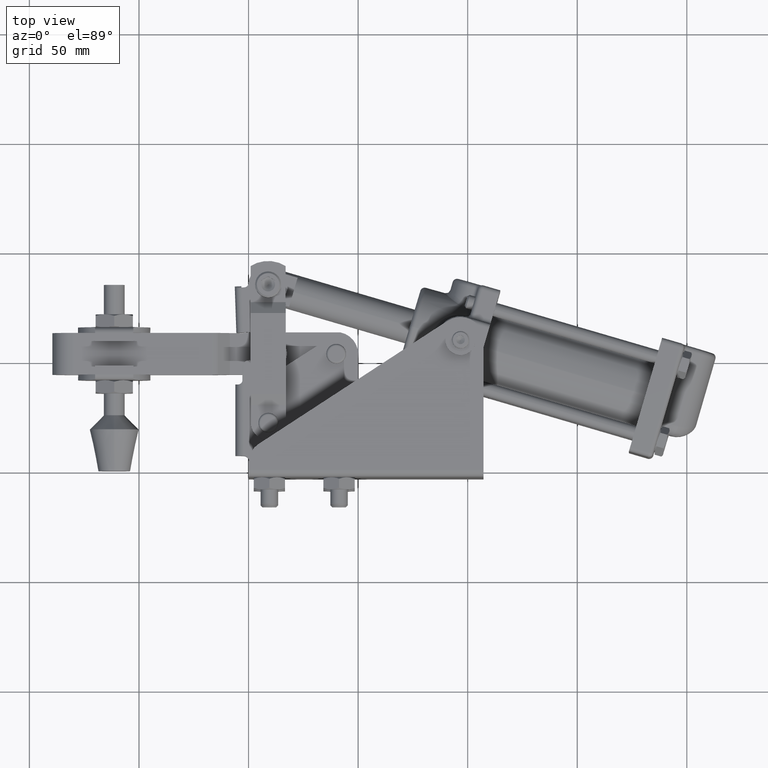
[diagram: clean part render]
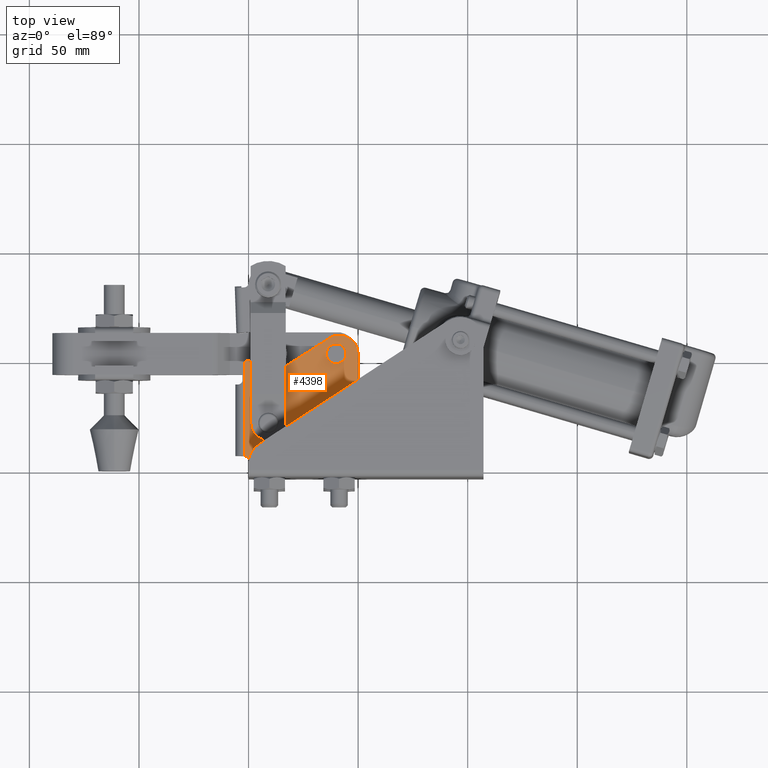
[diagram: same view with one face highlighted and labeled with its STEP entity id]
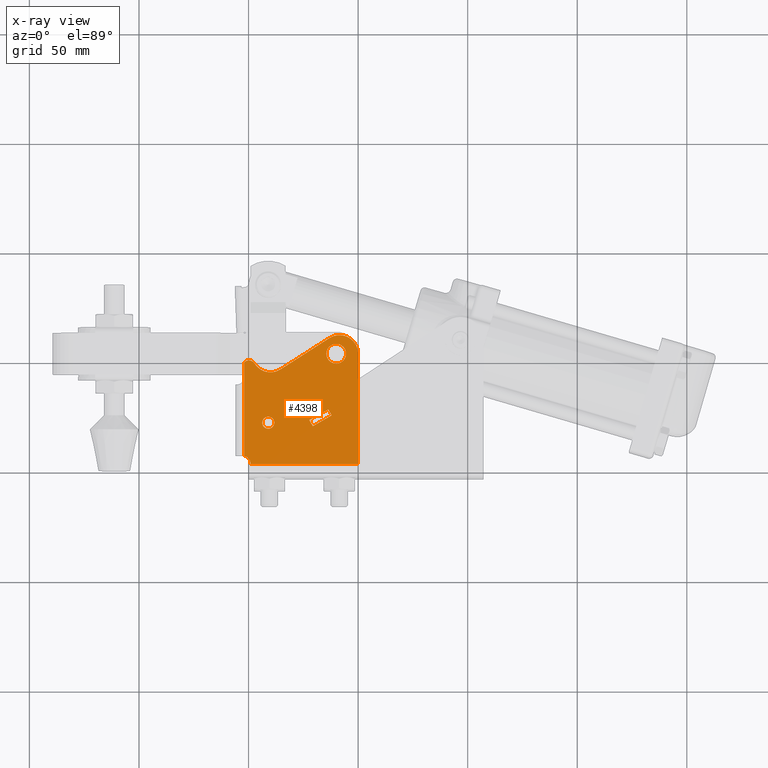
[diagram: x-ray of the same camera — body ghosted, the highlighted face saturated]
A machine part, top view. The second image highlights one B-rep face of the part: STEP entity #4398.
The next image is the same camera in x-ray: the body ghosted, the highlighted face saturated — about 0% of this face is hidden behind the body in this view.
In plain terms, the highlighted planar face has unit normal (0, 0, 1).
Its self-contained STEP definition (entity closure, byte-faithful):
#196 = DIRECTION ( 'NONE',  ( 0.0000000000000000000, 0.0000000000000000000, 1.000000000000000000 ) ) ;
#348 = DIRECTION ( 'NONE',  ( 0.8660254037844444800, 0.4999999999999899000, 0.0000000000000000000 ) ) ;
#630 = VERTEX_POINT ( 'NONE', #2278 ) ;
#990 = DIRECTION ( 'NONE',  ( 0.0000000000000000000, 0.0000000000000000000, 1.000000000000000000 ) ) ;
#991 = DIRECTION ( 'NONE',  ( 1.000000000000000000, 0.0000000000000000000, 0.0000000000000000000 ) ) ;
#1034 = VERTEX_POINT ( 'NONE', #18400 ) ;
#1097 = LINE ( 'NONE', #17187, #21736 ) ;
#1398 = DIRECTION ( 'NONE',  ( 1.000000000000000000, 0.0000000000000000000, 0.0000000000000000000 ) ) ;
#1402 = EDGE_CURVE ( 'NONE', #27455, #1034, #31742, .T. ) ;
#1664 = CARTESIAN_POINT ( 'NONE',  ( -49.19999999999917900, 3.500000000000003100, 7.000000000000000000 ) ) ;
#2278 = CARTESIAN_POINT ( 'NONE',  ( -7.466989818575354900, 49.77993113570642000, 7.000000000000000000 ) ) ;
#2461 = LINE ( 'NONE', #6563, #19884 ) ;
#2514 = DIRECTION ( 'NONE',  ( 0.0000000000000000000, 0.0000000000000000000, 1.000000000000000000 ) ) ;
#2976 = VECTOR ( 'NONE', #25207, 1000.000000000000000 ) ;
#3260 = VECTOR ( 'NONE', #348, 1000.000000000000100 ) ;
#4083 = ORIENTED_EDGE ( 'NONE', *, *, #33355, .F. ) ;
#4133 = ORIENTED_EDGE ( 'NONE', *, *, #29233, .T. ) ;
#4272 = AXIS2_PLACEMENT_3D ( 'NONE', #13667, #31745, #16267 ) ;
#4398 = ADVANCED_FACE ( 'NONE', ( #24924, #30152, #10337, #23332 ), #32613, .T. ) ;
#5260 = DIRECTION ( 'NONE',  ( -0.0000000000000000000, -0.0000000000000000000, -1.000000000000000000 ) ) ;
#5446 = ORIENTED_EDGE ( 'NONE', *, *, #32872, .T. ) ;
#5581 = AXIS2_PLACEMENT_3D ( 'NONE', #32693, #990, #11745 ) ;
#5881 = ORIENTED_EDGE ( 'NONE', *, *, #7941, .F. ) ;
#5978 = DIRECTION ( 'NONE',  ( 1.982541115402063700E-015, -1.000000000000000000, 0.0000000000000000000 ) ) ;
#6563 = CARTESIAN_POINT ( 'NONE',  ( -49.20000000000005300, 3.000000000000000000, 6.999999999999985800 ) ) ;
#6762 = AXIS2_PLACEMENT_3D ( 'NONE', #25527, #10020, #28121 ) ;
#6887 = VERTEX_POINT ( 'NONE', #18082 ) ;
#6886 = EDGE_CURVE ( 'NONE', #14216, #18568, #22460, .T. ) ;
#7521 = ORIENTED_EDGE ( 'NONE', *, *, #28423, .T. ) ;
#7609 = VECTOR ( 'NONE', #32881, 1000.000000000000000 ) ;
#7750 = VERTEX_POINT ( 'NONE', #16985 ) ;
#7941 = EDGE_CURVE ( 'NONE', #17130, #27455, #30816, .T. ) ;
#8057 = EDGE_CURVE ( 'NONE', #14333, #6887, #21081, .T. ) ;
#8668 = VECTOR ( 'NONE', #5978, 1000.000000000000000 ) ;
#8983 = CARTESIAN_POINT ( 'NONE',  ( -40.99998930350813700, 21.99999999999999300, 7.000000000000000000 ) ) ;
#9172 = EDGE_LOOP ( 'NONE', ( #12729, #31711 ) ) ;
#9182 = ORIENTED_EDGE ( 'NONE', *, *, #1402, .F. ) ;
#9446 = CARTESIAN_POINT ( 'NONE',  ( -22.29911704793288200, 23.21938834916051800, 7.000000000000000000 ) ) ;
#10020 = DIRECTION ( 'NONE',  ( 0.0000000000000000000, 0.0000000000000000000, 1.000000000000000000 ) ) ;
#10337 = FACE_OUTER_BOUND ( 'NONE', #19641, .T. ) ;
#10372 = CARTESIAN_POINT ( 'NONE',  ( -49.20000000000005300, 3.000000000000000000, 6.999999999999985800 ) ) ;
#10830 = ORIENTED_EDGE ( 'NONE', *, *, #12881, .T. ) ;
#10964 = CIRCLE ( 'NONE', #31064, 2.750000000000002700 ) ;
#11745 = DIRECTION ( 'NONE',  ( 1.000000000000000000, 0.0000000000000000000, -0.0000000000000000000 ) ) ;
#11907 = VECTOR ( 'NONE', #30353, 1000.000000000000200 ) ;
#12295 = CARTESIAN_POINT ( 'NONE',  ( -51.99999999999923300, 7.000000000000007100, 7.000000000000000000 ) ) ;
#12406 = VECTOR ( 'NONE', #18773, 1000.000000000000000 ) ;
#12473 = VERTEX_POINT ( 'NONE', #30297 ) ;
#12622 = DIRECTION ( 'NONE',  ( -0.0000000000000000000, -0.0000000000000000000, -1.000000000000000000 ) ) ;
#12729 = ORIENTED_EDGE ( 'NONE', *, *, #29469, .F. ) ;
#12881 = EDGE_CURVE ( 'NONE', #6887, #32467, #22935, .T. ) ;
#13300 = VERTEX_POINT ( 'NONE', #20416 ) ;
#13667 = CARTESIAN_POINT ( 'NONE',  ( -9.999989303508149500, 53.50000000000000000, 7.000000000000000000 ) ) ;
#13723 = ORIENTED_EDGE ( 'NONE', *, *, #26292, .T. ) ;
#13761 = CARTESIAN_POINT ( 'NONE',  ( -49.79727695269276900, 47.47999999999999700, 7.000000000000000000 ) ) ;
#13878 = ORIENTED_EDGE ( 'NONE', *, *, #8057, .T. ) ;
#14216 = VERTEX_POINT ( 'NONE', #22111 ) ;
#14333 = VERTEX_POINT ( 'NONE', #20546 ) ;
#14507 = DIRECTION ( 'NONE',  ( 1.000000000000000000, 0.0000000000000000000, 4.231032868236112000E-016 ) ) ;
#14581 = EDGE_CURVE ( 'NONE', #12473, #25230, #10964, .T. ) ;
#15401 = VERTEX_POINT ( 'NONE', #25633 ) ;
#15736 = CARTESIAN_POINT ( 'NONE',  ( -20.66021590455439100, 20.43762939681197100, 7.000000000000000000 ) ) ;
#16190 = ORIENTED_EDGE ( 'NONE', *, *, #27845, .T. ) ;
#16194 = CARTESIAN_POINT ( 'NONE',  ( -22.29911704793288200, 23.21938834916051800, 7.000000000000000000 ) ) ;
#16267 = DIRECTION ( 'NONE',  ( 1.000000000000000000, 0.0000000000000000000, 0.0000000000000000000 ) ) ;
#16504 = DIRECTION ( 'NONE',  ( 0.0000000000000000000, 0.0000000000000000000, 1.000000000000000000 ) ) ;
#16542 = ORIENTED_EDGE ( 'NONE', *, *, #6886, .T. ) ;
#16766 = LINE ( 'NONE', #12295, #2976 ) ;
#16908 = DIRECTION ( 'NONE',  ( 0.0000000000000000000, 0.0000000000000000000, 1.000000000000000000 ) ) ;
#16985 = CARTESIAN_POINT ( 'NONE',  ( -13.08816070665253900, 60.66099711756091800, 7.000000000000000000 ) ) ;
#17126 = VERTEX_POINT ( 'NONE', #31089 ) ;
#17130 = VERTEX_POINT ( 'NONE', #20685 ) ;
#17185 = CARTESIAN_POINT ( 'NONE',  ( -51.99999999999924000, 49.51666668280913100, 7.000000000000000000 ) ) ;
#17187 = CARTESIAN_POINT ( 'NONE',  ( -35.41182853735000400, 46.34655716312338600, 7.000000000000000000 ) ) ;
#17442 = CARTESIAN_POINT ( 'NONE',  ( -12.53298878844094200, 57.22006886429358000, 7.000000000000000000 ) ) ;
#17576 = ORIENTED_EDGE ( 'NONE', *, *, #23878, .F. ) ;
#17724 = EDGE_LOOP ( 'NONE', ( #9182, #5881, #28496, #17576 ) ) ;
#18082 = CARTESIAN_POINT ( 'NONE',  ( -47.24146276781706900, 49.05092770437981600, 7.000000000000000000 ) ) ;
#18400 = CARTESIAN_POINT ( 'NONE',  ( -13.63777173720610100, 28.02054285528191000, 7.000000000000000000 ) ) ;
#18568 = VERTEX_POINT ( 'NONE', #10372 ) ;
#18619 = DIRECTION ( 'NONE',  ( 1.000000000000000000, 0.0000000000000000000, 0.0000000000000000000 ) ) ;
#18773 = DIRECTION ( 'NONE',  ( -0.8746157506505432000, -0.4848167578724841300, -0.0000000000000000000 ) ) ;
#19317 = AXIS2_PLACEMENT_3D ( 'NONE', #31972, #16504, #991 ) ;
#19445 = VERTEX_POINT ( 'NONE', #17442 ) ;
#19641 = EDGE_LOOP ( 'NONE', ( #10830, #5446, #7521, #16542, #28659, #16190, #13723, #4133, #13878 ) ) ;
#19872 = DIRECTION ( 'NONE',  ( 0.5076119188068832800, -0.8615858285076386500, 0.0000000000000000000 ) ) ;
#19884 = VECTOR ( 'NONE', #14507, 1000.000000000000000 ) ;
#20378 = AXIS2_PLACEMENT_3D ( 'NONE', #13761, #196, #18619 ) ;
#20416 = CARTESIAN_POINT ( 'NONE',  ( -3.647396812456209300E-016, 3.000000000000002700, 7.000000000000000000 ) ) ;
#20546 = CARTESIAN_POINT ( 'NONE',  ( -35.41182853735000400, 46.34655716312337900, 7.000000000000000000 ) ) ;
#20685 = CARTESIAN_POINT ( 'NONE',  ( -20.66021590455439100, 20.43762939681197100, 7.000000000000000000 ) ) ;
#20723 = LINE ( 'NONE', #9446, #25177 ) ;
#20759 = CARTESIAN_POINT ( 'NONE',  ( -52.69999999999917900, 3.500000000000003100, 7.000000000000000000 ) ) ;
#21081 = CIRCLE ( 'NONE', #23483, 8.499999999999992900 ) ;
#21369 = CARTESIAN_POINT ( 'NONE',  ( -39.99998924400254200, 53.50188953345599400, 7.000000000000000000 ) ) ;
#21375 = LINE ( 'NONE', #30266, #7609 ) ;
#21736 = VECTOR ( 'NONE', #30181, 1000.000000000000100 ) ;
#22040 = DIRECTION ( 'NONE',  ( 1.000000000000000000, 0.0000000000000000000, 0.0000000000000000000 ) ) ;
#22111 = CARTESIAN_POINT ( 'NONE',  ( -49.19999999999917900, 3.500000000000003100, 7.000000000000000000 ) ) ;
#22229 = EDGE_CURVE ( 'NONE', #18568, #13300, #2461, .T. ) ;
#22460 = LINE ( 'NONE', #1664, #8668 ) ;
#22710 = AXIS2_PLACEMENT_3D ( 'NONE', #20759, #5260, #23397 ) ;
#22935 = CIRCLE ( 'NONE', #20378, 2.999999999999981800 ) ;
#23332 = FACE_BOUND ( 'NONE', #17724, .T. ) ;
#23397 = DIRECTION ( 'NONE',  ( 1.000000000000000000, 0.0000000000000000000, 0.0000000000000000000 ) ) ;
#23448 = EDGE_LOOP ( 'NONE', ( #4083, #29247 ) ) ;
#23483 = AXIS2_PLACEMENT_3D ( 'NONE', #21369, #12622, #22040 ) ;
#23878 = EDGE_CURVE ( 'NONE', #1034, #25818, #33053, .T. ) ;
#24775 = CIRCLE ( 'NONE', #19317, 4.500555381923027700 ) ;
#24924 = FACE_BOUND ( 'NONE', #23448, .T. ) ;
#25177 = VECTOR ( 'NONE', #19872, 1000.000000000000100 ) ;
#25207 = DIRECTION ( 'NONE',  ( 2.135044278125307800E-016, -1.000000000000000000, 0.0000000000000000000 ) ) ;
#25230 = VERTEX_POINT ( 'NONE', #27404 ) ;
#25527 = CARTESIAN_POINT ( 'NONE',  ( -8.500000000000007100, 53.50566474722831600, 7.000000000000000000 ) ) ;
#25560 = CARTESIAN_POINT ( 'NONE',  ( -12.08656440708852000, 25.38762939681179600, 7.000000000000000000 ) ) ;
#25633 = CARTESIAN_POINT ( 'NONE',  ( -51.99999999999923300, 6.929285639896463100, 7.000000000000000000 ) ) ;
#25808 = CARTESIAN_POINT ( 'NONE',  ( -22.29911704793288500, 23.21938834916051800, 7.000000000000000000 ) ) ;
#25818 = VERTEX_POINT ( 'NONE', #25808 ) ;
#26180 = EDGE_CURVE ( 'NONE', #25818, #17130, #20723, .T. ) ;
#26292 = EDGE_CURVE ( 'NONE', #17126, #7750, #27175, .T. ) ;
#27175 = CIRCLE ( 'NONE', #6762, 8.499999999999996400 ) ;
#27404 = CARTESIAN_POINT ( 'NONE',  ( -38.24998930350813000, 21.99999999999999300, 7.000000000000000000 ) ) ;
#27455 = VERTEX_POINT ( 'NONE', #25560 ) ;
#27845 = EDGE_CURVE ( 'NONE', #13300, #17126, #21375, .T. ) ;
#28121 = DIRECTION ( 'NONE',  ( 1.000000000000000000, 0.0000000000000000000, 0.0000000000000000000 ) ) ;
#28423 = EDGE_CURVE ( 'NONE', #15401, #14216, #29439, .T. ) ;
#28496 = ORIENTED_EDGE ( 'NONE', *, *, #26180, .F. ) ;
#28659 = ORIENTED_EDGE ( 'NONE', *, *, #22229, .T. ) ;
#29230 = CIRCLE ( 'NONE', #30730, 2.750000000000002700 ) ;
#29233 = EDGE_CURVE ( 'NONE', #7750, #14333, #1097, .T. ) ;
#29247 = ORIENTED_EDGE ( 'NONE', *, *, #14581, .F. ) ;
#29439 = CIRCLE ( 'NONE', #22710, 3.500000000000003100 ) ;
#29469 = EDGE_CURVE ( 'NONE', #19445, #630, #32221, .T. ) ;
#30152 = FACE_BOUND ( 'NONE', #9172, .T. ) ;
#30181 = DIRECTION ( 'NONE',  ( -0.8418038082744248000, -0.5397836125473570700, -0.0000000000000000000 ) ) ;
#30266 = CARTESIAN_POINT ( 'NONE',  ( -6.505213034913026600E-015, 53.50566474722831600, 7.000000000000000000 ) ) ;
#30297 = CARTESIAN_POINT ( 'NONE',  ( -43.74998930350813700, 21.99999999999999300, 7.000000000000000000 ) ) ;
#30353 = DIRECTION ( 'NONE',  ( -0.5076119188068825000, 0.8615858285076389800, -0.0000000000000000000 ) ) ;
#30730 = AXIS2_PLACEMENT_3D ( 'NONE', #32397, #16908, #1398 ) ;
#30807 = CARTESIAN_POINT ( 'NONE',  ( -13.63777173720610100, 28.02054285528191000, 7.000000000000000000 ) ) ;
#30816 = LINE ( 'NONE', #15736, #3260 ) ;
#31064 = AXIS2_PLACEMENT_3D ( 'NONE', #8983, #2514, #31649 ) ;
#31089 = CARTESIAN_POINT ( 'NONE',  ( -1.040834085586084300E-014, 53.50566474722831600, 7.000000000000000000 ) ) ;
#31277 = EDGE_CURVE ( 'NONE', #630, #19445, #24775, .T. ) ;
#31649 = DIRECTION ( 'NONE',  ( 1.000000000000000000, 0.0000000000000000000, 0.0000000000000000000 ) ) ;
#31711 = ORIENTED_EDGE ( 'NONE', *, *, #31277, .F. ) ;
#31742 = LINE ( 'NONE', #30807, #11907 ) ;
#31745 = DIRECTION ( 'NONE',  ( 0.0000000000000000000, 0.0000000000000000000, 1.000000000000000000 ) ) ;
#31972 = CARTESIAN_POINT ( 'NONE',  ( -9.999989303508149500, 53.50000000000000000, 7.000000000000000000 ) ) ;
#32221 = CIRCLE ( 'NONE', #4272, 4.500555381923027700 ) ;
#32397 = CARTESIAN_POINT ( 'NONE',  ( -40.99998930350813700, 21.99999999999999300, 7.000000000000000000 ) ) ;
#32467 = VERTEX_POINT ( 'NONE', #17185 ) ;
#32613 = PLANE ( 'NONE',  #5581 ) ;
#32693 = CARTESIAN_POINT ( 'NONE',  ( -52.69999999999917900, 3.500000000000003100, 7.000000000000000000 ) ) ;
#32872 = EDGE_CURVE ( 'NONE', #32467, #15401, #16766, .T. ) ;
#32881 = DIRECTION ( 'NONE',  ( -1.215798937485401000E-016, 1.000000000000000000, -0.0000000000000000000 ) ) ;
#33053 = LINE ( 'NONE', #16194, #12406 ) ;
#33355 = EDGE_CURVE ( 'NONE', #25230, #12473, #29230, .T. ) ;